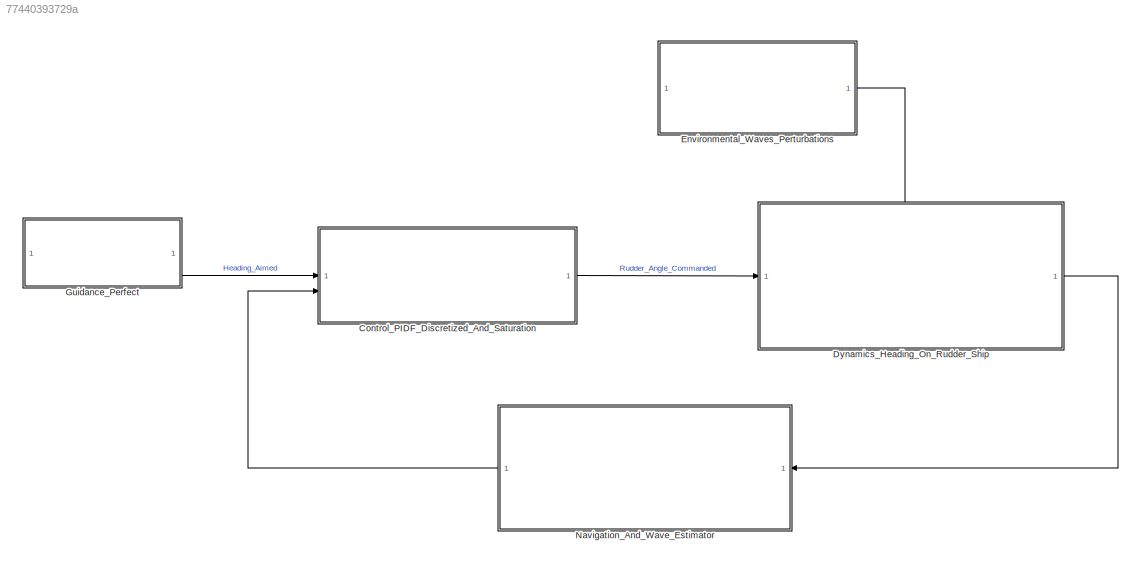
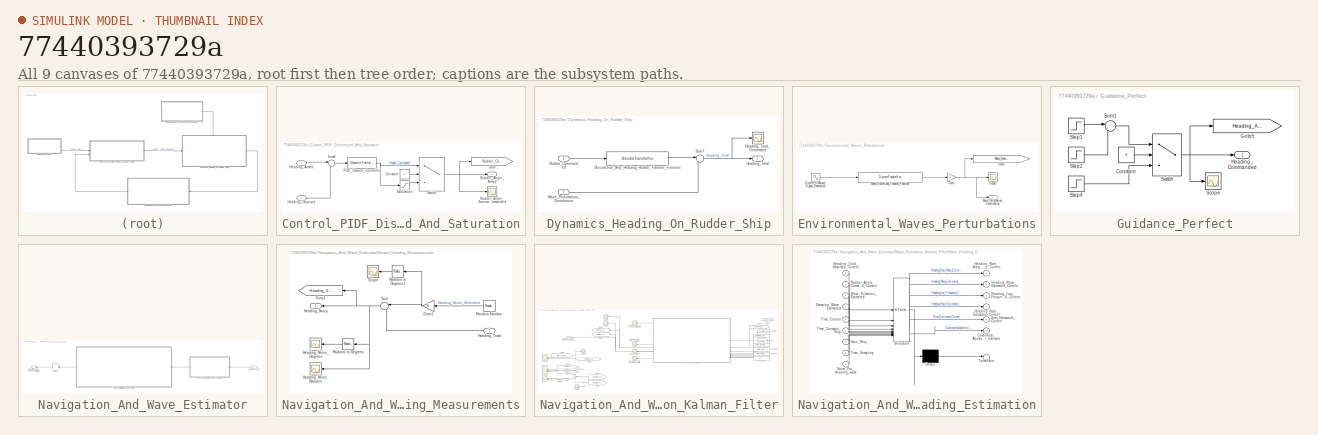
[diagram: thumbnail index - all 9 canvases of the model, root first then tree order]
MODEL slx_77440393729a
KIND model
CONFIG AbsTol = auto
CONFIG EnableMultiTasking = off
CONFIG FixedStep = auto
CONFIG MaxStep = auto
CONFIG MinStep = auto
CONFIG RelTol = 1e-3
CONFIG SampleTimeConstraint = Unconstrained
CONFIG SolverName = VariableStepAuto
CONFIG StartTime = 0.0
CONFIG StopTime = 100
BLOCK [SubSystem] Control_PIDF_Discretized_And_Saturation
BLOCK [Constant] Control_PIDF_Discretized_And_Saturation/Constant
  Value = 0
BLOCK [Goto] Control_PIDF_Discretized_And_Saturation/Goto
  GotoTag = Rudder_Commanded
  TagVisibility = global
BLOCK [Inport] Control_PIDF_Discretized_And_Saturation/Heading_Aimed
BLOCK [Inport] Control_PIDF_Discretized_And_Saturation/Heading_Observed
  Port = 2
BLOCK [DiscreteTransferFcn] Control_PIDF_Discretized_And_Saturation/PIDF_Discrete_Controller
  Denominator = [Controller_PDF_Classical_Discrete.Denominator{1}]
  InputPortMap = u0
  Numerator = [Controller_PDF_Classical_Discrete.Numerator{1}]
BLOCK [Outport] Control_PIDF_Discretized_And_Saturation/Rudder_Angle_Aimed
BLOCK [Scope] Control_PIDF_Discretized_And_Saturation/Rudder_Angle_Saturated_Commanded
  Floating = off
  NumInputPorts = 1
  ScopeSpecificationString = Simulink.scopes.TimeScopeBlockCfg('CurrentConfiguration', extmgr.ConfigurationSet(extmgr.Configuration('Core','General UI',true),extmgr.Configuration('Core','Source UI',true),extmgr.Configuration('Sources','WiredSimulink',true,'DataLoggingVariableName','ScopeData1'),extmgr.Configuration('Visuals','Time Domain',true,'SerializedDisplays',{struct('MinYLimReal','-0.76358','MaxYLimReal','0.76358','YLab...<+1498ch>
BLOCK [Saturate] Control_PIDF_Discretized_And_Saturation/Saturation
  LowerLimit = -35*(pi/180)
  UpperLimit = 35*(pi/180)
BLOCK [Sum] Control_PIDF_Discretized_And_Saturation/Sum6
  Inputs = |+-
BLOCK [Switch] Control_PIDF_Discretized_And_Saturation/Switch
  Criteria = u2 > Threshold
  InputSameDT = off
  SaturateOnIntegerOverflow = off
BLOCK [SubSystem] Dynamics_Heading_On_Rudder_Ship
  PortSchema = {"entries":[{"content":{"sides":[{"content":{"connectorIds":["In1"]},"type":"ConnectorPlacement.EquallySpacedRectSide","uuid":"1262d93f-9737-49c5-b1c8-13d3f825160d"},{"content":{"connectorIds":["Out1"],"side":"RIGHT"},"type":"ConnectorPlacement.EquallySpacedRectSide","uuid":"2783823e-17f0-4da0-9b4a-e84aa912eb5f"},{"content":{"connectorIds":["In2"],"side":"TOP"},"type":"ConnectorPlacement.EquallySp...<+245ch>
BLOCK [DiscreteTransferFcn] Dynamics_Heading_On_Rudder_Ship/Discretized_Ship_Heading_Rudder_Transfer_Function
  Denominator = [Rudder_To_Heading_Discretized.Denominator{1}]
  InputPortMap = u0
  Numerator = [Rudder_To_Heading_Discretized.Numerator{1}]
BLOCK [Outport] Dynamics_Heading_On_Rudder_Ship/Heading_Total
BLOCK [Scope] Dynamics_Heading_On_Rudder_Ship/Heading_Total_Generated
  Floating = off
  NumInputPorts = 1
  ScopeSpecificationString = Simulink.scopes.TimeScopeBlockCfg('CurrentConfiguration', extmgr.ConfigurationSet(extmgr.Configuration('Core','General UI',true),extmgr.Configuration('Core','Source UI',true),extmgr.Configuration('Sources','WiredSimulink',true,'DataLoggingVariableName','ScopeData1'),extmgr.Configuration('Visuals','Time Domain',true,'SerializedDisplays',{struct('MinYLimReal','-2496.16459','MaxYLimReal','22464.7165'...<+1483ch>
BLOCK [Inport] Dynamics_Heading_On_Rudder_Ship/Rudder_Commanded
BLOCK [Sum] Dynamics_Heading_On_Rudder_Ship/Sum7
  Inputs = |++
BLOCK [Inport] Dynamics_Heading_On_Rudder_Ship/Wave_Perturbation_Contribution
  Port = 2
BLOCK [SubSystem] Environmental_Waves_Perturbations
BLOCK [Sin] Environmental_Waves_Perturbations/Discrete_Sinewave_Signal_Generation
  Amplitude = 1*(pi/180)
  Frequency = Pulsation_Wave
  SampleTime = Time_Period_Sampling
BLOCK [Gain] Environmental_Waves_Perturbations/Gain
BLOCK [Goto] Environmental_Waves_Perturbations/Goto2
  GotoTag = Wave_Generated_Signal
  TagVisibility = global
BLOCK [Scope] Environmental_Waves_Perturbations/Scope5
  Floating = off
  NumInputPorts = 1
  ScopeSpecificationString = Simulink.scopes.TimeScopeBlockCfg('CurrentConfiguration', extmgr.ConfigurationSet(extmgr.Configuration('Core','General UI',true),extmgr.Configuration('Core','Source UI',true),extmgr.Configuration('Sources','WiredSimulink',true,'DataLoggingVariableName','ScopeData2'),extmgr.Configuration('Visuals','Time Domain',true,'SerializedDisplays',{struct('MinYLimReal','-0.38135','MaxYLimReal','0.38122','YLab...<+1487ch>
BLOCK [DiscreteTransferFcn] Environmental_Waves_Perturbations/Wave_Discretized_Transfer_Function
  Denominator = [Wave_Transfer_Function_Discrete.Denominator{1}]
  InputPortMap = u0
  Numerator = [Wave_Transfer_Function_Discrete.Numerator{1}]
BLOCK [Outport] Environmental_Waves_Perturbations/Wave_Perturbation_Contribution
BLOCK [SubSystem] Guidance_Perfect
BLOCK [Constant] Guidance_Perfect/Constant
  Value = 0
BLOCK [Goto] Guidance_Perfect/Goto5
  GotoTag = Heading_Aimed
  TagVisibility = global
BLOCK [Outport] Guidance_Perfect/Heading_Commanded
BLOCK [Scope] Guidance_Perfect/Scope
  Floating = off
  NumInputPorts = 1
  ScopeSpecificationString = Simulink.scopes.TimeScopeBlockCfg('CurrentConfiguration', extmgr.ConfigurationSet(extmgr.Configuration('Core','General UI',true),extmgr.Configuration('Core','Source UI',true),extmgr.Configuration('Sources','WiredSimulink',true,'DataLoggingVariableName','ScopeData1'),extmgr.Configuration('Visuals','Time Domain',true,'SerializedDisplays',{struct('MinYLimReal','-0.06545','MaxYLimReal','0.58905','YLab...<+1454ch>
BLOCK [Step] Guidance_Perfect/Step1
  After = 15*(pi/180)
  SampleTime = 0
BLOCK [Step] Guidance_Perfect/Step2
  After = 22*(pi/180)
  SampleTime = 0
  Time = 5
BLOCK [Step] Guidance_Perfect/Step4
  After = 30*(pi/180)
  SampleTime = 0
BLOCK [Sum] Guidance_Perfect/Sum1
  Inputs = |++
BLOCK [Switch] Guidance_Perfect/Switch
  Criteria = u2 > Threshold
  InputSameDT = off
  SaturateOnIntegerOverflow = off
BLOCK [SubSystem] Navigation_And_Wave_Estimator
BLOCK [Delay] Navigation_And_Wave_Estimator/Delay
  DelayLength = 1
  InputPortMap = u0
  InputProcessing = Columns as channels (frame based)
  NameLocation = top
BLOCK [Outport] Navigation_And_Wave_Estimator/Heading_Low_Frequency_Filtered_Estimated
BLOCK [Inport] Navigation_And_Wave_Estimator/Heading_Total
BLOCK [SubSystem] Navigation_And_Wave_Estimator/Sensor_Heading_Measurements
BLOCK [Gain] Navigation_And_Wave_Estimator/Sensor_Heading_Measurements/Gain1
BLOCK [Goto] Navigation_And_Wave_Estimator/Sensor_Heading_Measurements/Goto1
  GotoTag = Heading_Observed
  TagVisibility = global
BLOCK [Scope] Navigation_And_Wave_Estimator/Sensor_Heading_Measurements/Heading_Noise_Degrees
  Floating = off
  NumInputPorts = 1
  ScopeSpecificationString = Simulink.scopes.TimeScopeBlockCfg('CurrentConfiguration', extmgr.ConfigurationSet(extmgr.Configuration('Core','General UI',true),extmgr.Configuration('Core','Source UI',true),extmgr.Configuration('Sources','WiredSimulink',true,'DataLoggingVariableName','ScopeData4'),extmgr.Configuration('Visuals','Time Domain',true,'SerializedDisplays',{struct('MinYLimReal','-4.88624','MaxYLimReal','40.76193','YLa...<+1528ch>
BLOCK [Scope] Navigation_And_Wave_Estimator/Sensor_Heading_Measurements/Heading_Noise_Radians
  Floating = off
  NumInputPorts = 1
  ScopeSpecificationString = Simulink.scopes.TimeScopeBlockCfg('CurrentConfiguration', extmgr.ConfigurationSet(extmgr.Configuration('Core','General UI',true),extmgr.Configuration('Core','Source UI',true),extmgr.Configuration('Sources','WiredSimulink',true,'DataLoggingVariableName','ScopeData3'),extmgr.Configuration('Visuals','Time Domain',true,'SerializedDisplays',{struct('MinYLimReal','-1.2109','MaxYLimReal','1.32229','YLabe...<+1522ch>
BLOCK [Outport] Navigation_And_Wave_Estimator/Sensor_Heading_Measurements/Heading_Noisy
BLOCK [Inport] Navigation_And_Wave_Estimator/Sensor_Heading_Measurements/Heading_Total
BLOCK [Reference] Navigation_And_Wave_Estimator/Sensor_Heading_Measurements/Radians to Degrees  REF=simulink_extras/Transformations/Radians
to Degrees
  SourceBlock = simulink_extras/Transformations/Radians\nto Degrees
  SourceType = RadiansToDegrees
BLOCK [Reference] Navigation_And_Wave_Estimator/Sensor_Heading_Measurements/Radians to Degrees1  REF=simulink_extras/Transformations/Radians
to Degrees
  SourceBlock = simulink_extras/Transformations/Radians\nto Degrees
  SourceType = RadiansToDegrees
BLOCK [RandomNumber] Navigation_And_Wave_Estimator/Sensor_Heading_Measurements/Random Number
  SampleTime = Time_Period_Sampling
  Variance = ((1*(pi/180))/3)^2
BLOCK [Scope] Navigation_And_Wave_Estimator/Sensor_Heading_Measurements/Scope
  Floating = off
  NumInputPorts = 1
  ScopeSpecificationString = Simulink.scopes.TimeScopeBlockCfg('CurrentConfiguration', extmgr.ConfigurationSet(extmgr.Configuration('Core','General UI',true),extmgr.Configuration('Core','Source UI',true),extmgr.Configuration('Sources','WiredSimulink',true,'DataLoggingVariableName','ScopeData1'),extmgr.Configuration('Visuals','Time Domain',true,'SerializedDisplays',{struct('MinYLimReal','-1.23545','MaxYLimReal','1.32502','YLab...<+1467ch>
BLOCK [Sum] Navigation_And_Wave_Estimator/Sensor_Heading_Measurements/Sum
  Inputs = |++
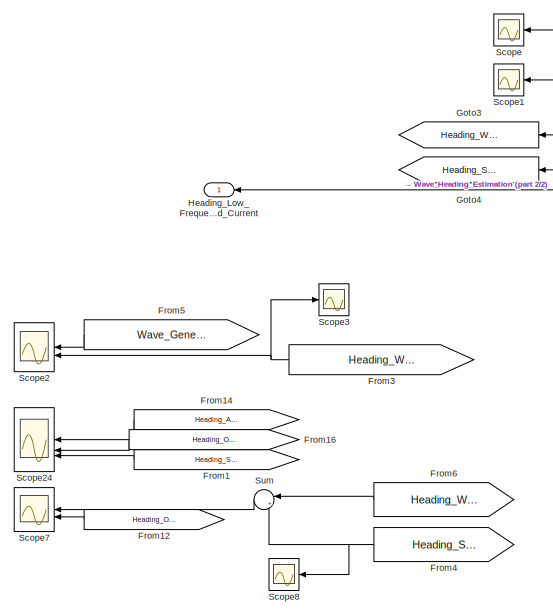
[diagram: Navigation_And_Wave_Estimator/Wave_Estimation_Kalman_Filter - part 1/2, left side, full height]
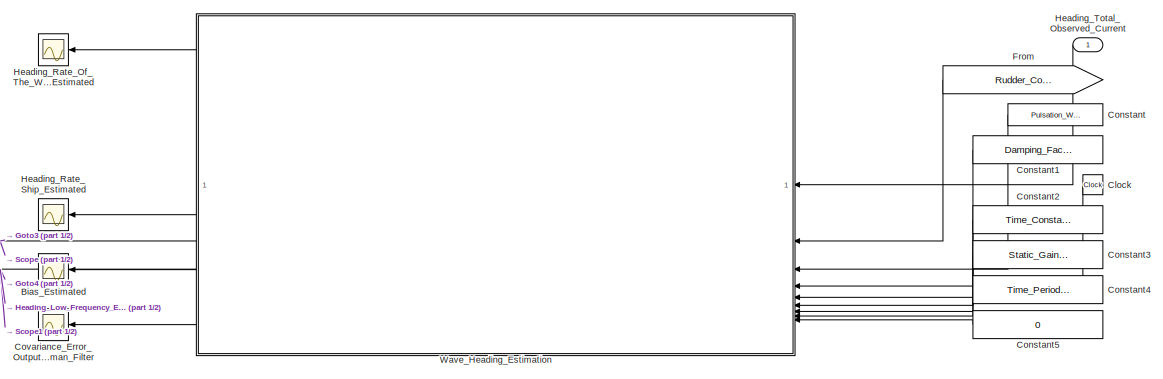
[diagram: Navigation_And_Wave_Estimator/Wave_Estimation_Kalman_Filter - part 2/2, middle right region]
BLOCK [SubSystem] Navigation_And_Wave_Estimator/Wave_Estimation_Kalman_Filter
BLOCK [Scope] Navigation_And_Wave_Estimator/Wave_Estimation_Kalman_Filter/Bias_Estimated
  Floating = off
  NumInputPorts = 1
  ScopeSpecificationString = Simulink.scopes.TimeScopeBlockCfg('CurrentConfiguration', extmgr.ConfigurationSet(extmgr.Configuration('Core','General UI',true),extmgr.Configuration('Core','Source UI',true),extmgr.Configuration('Sources','WiredSimulink',true,'DataLoggingVariableName','ScopeData9'),extmgr.Configuration('Visuals','Time Domain',true),extmgr.Configuration('Tools','Plot Navigation',true),extmgr.Configuration('Tools',...<+40ch>
BLOCK [Clock] Navigation_And_Wave_Estimator/Wave_Estimation_Kalman_Filter/Clock
BLOCK [Constant] Navigation_And_Wave_Estimator/Wave_Estimation_Kalman_Filter/Constant
  SampleTime = Time_Period_Sampling
  Value = Pulsation_Wave
BLOCK [Constant] Navigation_And_Wave_Estimator/Wave_Estimation_Kalman_Filter/Constant1
  SampleTime = Time_Period_Sampling
  Value = Damping_Factor_Waves
BLOCK [Constant] Navigation_And_Wave_Estimator/Wave_Estimation_Kalman_Filter/Constant2
  SampleTime = Time_Period_Sampling
  Value = Time_Constant_Total
BLOCK [Constant] Navigation_And_Wave_Estimator/Wave_Estimation_Kalman_Filter/Constant3
  SampleTime = Time_Period_Sampling
  Value = Static_Gain_Nomoto
BLOCK [Constant] Navigation_And_Wave_Estimator/Wave_Estimation_Kalman_Filter/Constant4
  SampleTime = Time_Period_Sampling
  Value = Time_Period_Sampling
BLOCK [Constant] Navigation_And_Wave_Estimator/Wave_Estimation_Kalman_Filter/Constant5
  Value = 0
BLOCK [Scope] Navigation_And_Wave_Estimator/Wave_Estimation_Kalman_Filter/Covariance_Error_Output_Kalman_Filter
  Floating = off
  NumInputPorts = 1
  ScopeSpecificationString = Simulink.scopes.TimeScopeBlockCfg('CurrentConfiguration', extmgr.ConfigurationSet(extmgr.Configuration('Core','General UI',true),extmgr.Configuration('Core','Source UI',true),extmgr.Configuration('Sources','WiredSimulink',true,'DataLoggingVariableName','ScopeData10'),extmgr.Configuration('Visuals','Time Domain',true),extmgr.Configuration('Tools','Plot Navigation',true),extmgr.Configuration('Tools'...<+41ch>
BLOCK [From] Navigation_And_Wave_Estimator/Wave_Estimation_Kalman_Filter/From
  GotoTag = Rudder_Commanded
  TagVisibility = global
BLOCK [From] Navigation_And_Wave_Estimator/Wave_Estimation_Kalman_Filter/From1
  GotoTag = Heading_Ship_Estimated
  TagVisibility = global
BLOCK [From] Navigation_And_Wave_Estimator/Wave_Estimation_Kalman_Filter/From12
  GotoTag = Heading_Observed
  TagVisibility = global
BLOCK [From] Navigation_And_Wave_Estimator/Wave_Estimation_Kalman_Filter/From14
  GotoTag = Heading_Aimed
  TagVisibility = global
BLOCK [From] Navigation_And_Wave_Estimator/Wave_Estimation_Kalman_Filter/From16
  GotoTag = Heading_Observed
  TagVisibility = global
BLOCK [From] Navigation_And_Wave_Estimator/Wave_Estimation_Kalman_Filter/From3
  GotoTag = Heading_Wave_Estimated
  TagVisibility = global
BLOCK [From] Navigation_And_Wave_Estimator/Wave_Estimation_Kalman_Filter/From4
  GotoTag = Heading_Ship_Estimated
  TagVisibility = global
BLOCK [From] Navigation_And_Wave_Estimator/Wave_Estimation_Kalman_Filter/From5
  GotoTag = Wave_Generated_Signal
  TagVisibility = global
BLOCK [From] Navigation_And_Wave_Estimator/Wave_Estimation_Kalman_Filter/From6
  GotoTag = Heading_Wave_Estimated
  TagVisibility = global
BLOCK [Goto] Navigation_And_Wave_Estimator/Wave_Estimation_Kalman_Filter/Goto3
  GotoTag = Heading_Wave_Estimated
  TagVisibility = global
BLOCK [Goto] Navigation_And_Wave_Estimator/Wave_Estimation_Kalman_Filter/Goto4
  GotoTag = Heading_Ship_Estimated
  NameLocation = right
  TagVisibility = global
BLOCK [Outport] Navigation_And_Wave_Estimator/Wave_Estimation_Kalman_Filter/Heading_Low_Frequency_Estimated_Current
BLOCK [Scope] Navigation_And_Wave_Estimator/Wave_Estimation_Kalman_Filter/Heading_Rate_Of_The_Waves_Estimated
  Floating = off
  NumInputPorts = 1
  ScopeSpecificationString = Simulink.scopes.TimeScopeBlockCfg('CurrentConfiguration', extmgr.ConfigurationSet(extmgr.Configuration('Core','General UI',true),extmgr.Configuration('Core','Source UI',true),extmgr.Configuration('Sources','WiredSimulink',true,'DataLoggingVariableName','ScopeData5'),extmgr.Configuration('Visuals','Time Domain',true),extmgr.Configuration('Tools','Plot Navigation',true),extmgr.Configuration('Tools',...<+40ch>
BLOCK [Scope] Navigation_And_Wave_Estimator/Wave_Estimation_Kalman_Filter/Heading_Rate_Ship_Estimated
  Floating = off
  NumInputPorts = 1
  ScopeSpecificationString = Simulink.scopes.TimeScopeBlockCfg('CurrentConfiguration', extmgr.ConfigurationSet(extmgr.Configuration('Core','General UI',true),extmgr.Configuration('Core','Source UI',true),extmgr.Configuration('Sources','WiredSimulink',true,'DataLoggingVariableName','ScopeData8'),extmgr.Configuration('Visuals','Time Domain',true,'SerializedDisplays',{struct('MinYLimReal','-0.03623','MaxYLimReal','0.05856','YLab...<+1502ch>
BLOCK [Inport] Navigation_And_Wave_Estimator/Wave_Estimation_Kalman_Filter/Heading_Total_Observed_Current
BLOCK [Scope] Navigation_And_Wave_Estimator/Wave_Estimation_Kalman_Filter/Scope
  Floating = off
  NumInputPorts = 1
  ScopeSpecificationString = Simulink.scopes.TimeScopeBlockCfg('CurrentConfiguration', extmgr.ConfigurationSet(extmgr.Configuration('Core','General UI',true),extmgr.Configuration('Core','Source UI',true),extmgr.Configuration('Sources','WiredSimulink',true,'DataLoggingVariableName','ScopeData6'),extmgr.Configuration('Visuals','Time Domain',true,'SerializedDisplays',{struct('MinYLimReal','-0.31549','MaxYLimReal','0.31628','YLab...<+1502ch>
BLOCK [Scope] Navigation_And_Wave_Estimator/Wave_Estimation_Kalman_Filter/Scope1
  Floating = off
  NumInputPorts = 1
  ScopeSpecificationString = Simulink.scopes.TimeScopeBlockCfg('CurrentConfiguration', extmgr.ConfigurationSet(extmgr.Configuration('Core','General UI',true),extmgr.Configuration('Core','Source UI',true),extmgr.Configuration('Sources','WiredSimulink',true,'DataLoggingVariableName','ScopeData7'),extmgr.Configuration('Visuals','Time Domain',true,'SerializedDisplays',{struct('MinYLimReal','-0.08218','MaxYLimReal','0.73966','YLab...<+1536ch>
BLOCK [Scope] Navigation_And_Wave_Estimator/Wave_Estimation_Kalman_Filter/Scope2
  Floating = off
  NumInputPorts = 2
  ScopeSpecificationString = Simulink.scopes.TimeScopeBlockCfg('CurrentConfiguration', extmgr.ConfigurationSet(extmgr.Configuration('Core','General UI',true),extmgr.Configuration('Core','Source UI',true),extmgr.Configuration('Sources','WiredSimulink',true,'DataLoggingVariableName','ScopeData11'),extmgr.Configuration('Visuals','Time Domain',true,'SerializedDisplays',{struct('MinYLimReal','-0.07627','MaxYLimReal','0.07624','YLa...<+1565ch>
BLOCK [Scope] Navigation_And_Wave_Estimator/Wave_Estimation_Kalman_Filter/Scope24
  Floating = off
  NumInputPorts = 3
  ScopeSpecificationString = Simulink.scopes.TimeScopeBlockCfg('CurrentConfiguration', extmgr.ConfigurationSet(extmgr.Configuration('Core','General UI',true),extmgr.Configuration('Core','Source UI',true),extmgr.Configuration('Sources','WiredSimulink',true,'DataLoggingVariableName','ScopeData13'),extmgr.Configuration('Visuals','Time Domain',true,'SerializedDisplays',{struct('MinYLimReal','-0.08528','MaxYLimReal','0.71143','YLa...<+1582ch>
BLOCK [Scope] Navigation_And_Wave_Estimator/Wave_Estimation_Kalman_Filter/Scope3
  Floating = off
  NumInputPorts = 1
  ScopeSpecificationString = Simulink.scopes.TimeScopeBlockCfg('CurrentConfiguration', extmgr.ConfigurationSet(extmgr.Configuration('Core','General UI',true),extmgr.Configuration('Core','Source UI',true),extmgr.Configuration('Sources','WiredSimulink',true,'DataLoggingVariableName','ScopeData12'),extmgr.Configuration('Visuals','Time Domain',true,'SerializedDisplays',{struct('MinYLimReal','-0.30515','MaxYLimReal','0.34115','YLa...<+1464ch>
BLOCK [Scope] Navigation_And_Wave_Estimator/Wave_Estimation_Kalman_Filter/Scope7
  Floating = off
  NumInputPorts = 2
  ScopeSpecificationString = Simulink.scopes.TimeScopeBlockCfg('CurrentConfiguration', extmgr.ConfigurationSet(extmgr.Configuration('Core','General UI',true),extmgr.Configuration('Core','Source UI',true),extmgr.Configuration('Sources','WiredSimulink',true,'DataLoggingVariableName','ScopeData14'),extmgr.Configuration('Visuals','Time Domain',true,'SerializedDisplays',{struct('MinYLimReal','-0.10386','MaxYLimReal','0.91742','YLa...<+1502ch>
BLOCK [Scope] Navigation_And_Wave_Estimator/Wave_Estimation_Kalman_Filter/Scope8
  Floating = off
  NumInputPorts = 1
  ScopeSpecificationString = Simulink.scopes.TimeScopeBlockCfg('CurrentConfiguration', extmgr.ConfigurationSet(extmgr.Configuration('Core','General UI',true),extmgr.Configuration('Core','Source UI',true),extmgr.Configuration('Sources','WiredSimulink',true,'DataLoggingVariableName','ScopeData15'),extmgr.Configuration('Visuals','Time Domain',true,'SerializedDisplays',{struct('MinYLimReal','-0.28811','MaxYLimReal','0.60064','YLa...<+1490ch>
BLOCK [Sum] Navigation_And_Wave_Estimator/Wave_Estimation_Kalman_Filter/Sum
  Inputs = |++
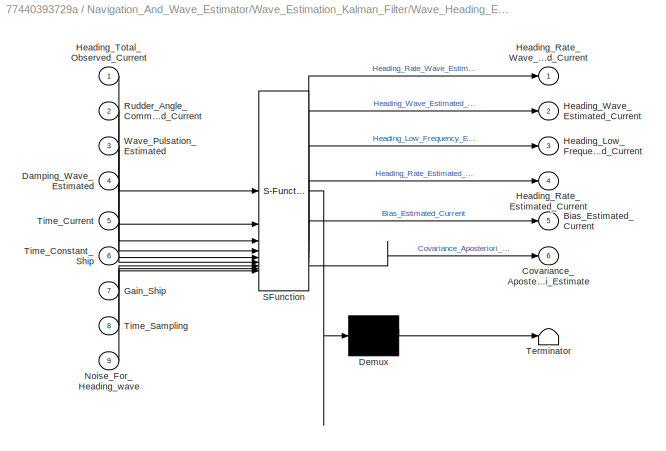
BLOCK [SubSystem] Navigation_And_Wave_Estimator/Wave_Estimation_Kalman_Filter/Wave_Heading_Estimation
  ErrorFcn = Stateflow.Translate.translate
  PermitHierarchicalResolution = ExplicitOnly
  SFBlockType = MATLAB Function
  SystemSampleTime = Time_Period_Sampling
  TreatAsAtomicUnit = on
BLOCK [Demux] Navigation_And_Wave_Estimator/Wave_Estimation_Kalman_Filter/Wave_Heading_Estimation/ Demux 
  Outputs = 1
BLOCK [S-Function] Navigation_And_Wave_Estimator/Wave_Estimation_Kalman_Filter/Wave_Heading_Estimation/ SFunction 
  EnableBusSupport = on
  FunctionName = sf_sfun
  PortCounts = [9 7]
  SFcnIsStateOwnerBlock = off
  SFunctionDeploymentMode = off
  Tag = Stateflow S-Function 2
BLOCK [Terminator] Navigation_And_Wave_Estimator/Wave_Estimation_Kalman_Filter/Wave_Heading_Estimation/ Terminator 
BLOCK [Outport] Navigation_And_Wave_Estimator/Wave_Estimation_Kalman_Filter/Wave_Heading_Estimation/Bias_Estimated_Current
  Port = 5
BLOCK [Outport] Navigation_And_Wave_Estimator/Wave_Estimation_Kalman_Filter/Wave_Heading_Estimation/Covariance_Aposteriori_Estimate
  Port = 6
BLOCK [Inport] Navigation_And_Wave_Estimator/Wave_Estimation_Kalman_Filter/Wave_Heading_Estimation/Damping_Wave_Estimated
  Port = 4
BLOCK [Inport] Navigation_And_Wave_Estimator/Wave_Estimation_Kalman_Filter/Wave_Heading_Estimation/Gain_Ship
  Port = 7
BLOCK [Outport] Navigation_And_Wave_Estimator/Wave_Estimation_Kalman_Filter/Wave_Heading_Estimation/Heading_Low_Frequency_Estimated_Current
  Port = 3
BLOCK [Outport] Navigation_And_Wave_Estimator/Wave_Estimation_Kalman_Filter/Wave_Heading_Estimation/Heading_Rate_Estimated_Current
  Port = 4
BLOCK [Outport] Navigation_And_Wave_Estimator/Wave_Estimation_Kalman_Filter/Wave_Heading_Estimation/Heading_Rate_Wave_Estimated_Current
BLOCK [Inport] Navigation_And_Wave_Estimator/Wave_Estimation_Kalman_Filter/Wave_Heading_Estimation/Heading_Total_Observed_Current
BLOCK [Outport] Navigation_And_Wave_Estimator/Wave_Estimation_Kalman_Filter/Wave_Heading_Estimation/Heading_Wave_Estimated_Current
  Port = 2
BLOCK [Inport] Navigation_And_Wave_Estimator/Wave_Estimation_Kalman_Filter/Wave_Heading_Estimation/Noise_For_Heading_wave
  Port = 9
BLOCK [Inport] Navigation_And_Wave_Estimator/Wave_Estimation_Kalman_Filter/Wave_Heading_Estimation/Rudder_Angle_Commanded_Current
  Port = 2
BLOCK [Inport] Navigation_And_Wave_Estimator/Wave_Estimation_Kalman_Filter/Wave_Heading_Estimation/Time_Constant_Ship
  Port = 6
BLOCK [Inport] Navigation_And_Wave_Estimator/Wave_Estimation_Kalman_Filter/Wave_Heading_Estimation/Time_Current
  Port = 5
BLOCK [Inport] Navigation_And_Wave_Estimator/Wave_Estimation_Kalman_Filter/Wave_Heading_Estimation/Time_Sampling
  Port = 8
BLOCK [Inport] Navigation_And_Wave_Estimator/Wave_Estimation_Kalman_Filter/Wave_Heading_Estimation/Wave_Pulsation_Estimated
  Port = 3
LINE Control_PIDF_Discretized_And_Saturation/Constant:1 -> Control_PIDF_Discretized_And_Saturation/Switch:2
LINE Control_PIDF_Discretized_And_Saturation/Heading_Aimed:1 -> Control_PIDF_Discretized_And_Saturation/Sum6:1
LINE Control_PIDF_Discretized_And_Saturation/Heading_Observed:1 -> Control_PIDF_Discretized_And_Saturation/Sum6:2
NET Control_PIDF_Discretized_And_Saturation/PIDF_Discrete_Controller:1 -> Control_PIDF_Discretized_And_Saturation/Saturation:1, Control_PIDF_Discretized_And_Saturation/Switch:1
LINE Control_PIDF_Discretized_And_Saturation/Saturation:1 -> Control_PIDF_Discretized_And_Saturation/Switch:3
LINE Control_PIDF_Discretized_And_Saturation/Sum6:1 -> Control_PIDF_Discretized_And_Saturation/PIDF_Discrete_Controller:1
NET Control_PIDF_Discretized_And_Saturation/Switch:1 -> Control_PIDF_Discretized_And_Saturation/Goto:1, Control_PIDF_Discretized_And_Saturation/Rudder_Angle_Aimed:1, Control_PIDF_Discretized_And_Saturation/Rudder_Angle_Saturated_Commanded:1
LINE Control_PIDF_Discretized_And_Saturation:1 -> Dynamics_Heading_On_Rudder_Ship:1
LINE Dynamics_Heading_On_Rudder_Ship/Discretized_Ship_Heading_Rudder_Transfer_Function:1 -> Dynamics_Heading_On_Rudder_Ship/Sum7:1
LINE Dynamics_Heading_On_Rudder_Ship/Rudder_Commanded:1 -> Dynamics_Heading_On_Rudder_Ship/Discretized_Ship_Heading_Rudder_Transfer_Function:1
NET Dynamics_Heading_On_Rudder_Ship/Sum7:1 -> Dynamics_Heading_On_Rudder_Ship/Heading_Total:1, Dynamics_Heading_On_Rudder_Ship/Heading_Total_Generated:1
LINE Dynamics_Heading_On_Rudder_Ship/Wave_Perturbation_Contribution:1 -> Dynamics_Heading_On_Rudder_Ship/Sum7:2
LINE Dynamics_Heading_On_Rudder_Ship:1 -> Navigation_And_Wave_Estimator:1
LINE Environmental_Waves_Perturbations/Discrete_Sinewave_Signal_Generation:1 -> Environmental_Waves_Perturbations/Wave_Discretized_Transfer_Function:1
NET Environmental_Waves_Perturbations/Gain:1 -> Environmental_Waves_Perturbations/Goto2:1, Environmental_Waves_Perturbations/Scope5:1, Environmental_Waves_Perturbations/Wave_Perturbation_Contribution:1
LINE Environmental_Waves_Perturbations/Wave_Discretized_Transfer_Function:1 -> Environmental_Waves_Perturbations/Gain:1
LINE Environmental_Waves_Perturbations:1 -> Dynamics_Heading_On_Rudder_Ship:2
LINE Guidance_Perfect/Constant:1 -> Guidance_Perfect/Switch:2
LINE Guidance_Perfect/Step1:1 -> Guidance_Perfect/Sum1:1
LINE Guidance_Perfect/Step2:1 -> Guidance_Perfect/Sum1:2
LINE Guidance_Perfect/Step4:1 -> Guidance_Perfect/Switch:3
LINE Guidance_Perfect/Sum1:1 -> Guidance_Perfect/Switch:1
NET Guidance_Perfect/Switch:1 -> Guidance_Perfect/Goto5:1, Guidance_Perfect/Heading_Commanded:1, Guidance_Perfect/Scope:1
LINE Guidance_Perfect:1 -> Control_PIDF_Discretized_And_Saturation:1
LINE Navigation_And_Wave_Estimator/Delay:1 -> Navigation_And_Wave_Estimator/Heading_Low_Frequency_Filtered_Estimated:1
LINE Navigation_And_Wave_Estimator/Heading_Total:1 -> Navigation_And_Wave_Estimator/Sensor_Heading_Measurements:1
NET Navigation_And_Wave_Estimator/Sensor_Heading_Measurements/Gain1:1 -> Navigation_And_Wave_Estimator/Sensor_Heading_Measurements/Radians to Degrees1:1, Navigation_And_Wave_Estimator/Sensor_Heading_Measurements/Sum:1
LINE Navigation_And_Wave_Estimator/Sensor_Heading_Measurements/Heading_Total:1 -> Navigation_And_Wave_Estimator/Sensor_Heading_Measurements/Sum:2
LINE Navigation_And_Wave_Estimator/Sensor_Heading_Measurements/Radians to Degrees1:1 -> Navigation_And_Wave_Estimator/Sensor_Heading_Measurements/Scope:1
LINE Navigation_And_Wave_Estimator/Sensor_Heading_Measurements/Radians to Degrees:1 -> Navigation_And_Wave_Estimator/Sensor_Heading_Measurements/Heading_Noise_Degrees:1
LINE Navigation_And_Wave_Estimator/Sensor_Heading_Measurements/Random Number:1 -> Navigation_And_Wave_Estimator/Sensor_Heading_Measurements/Gain1:1
NET Navigation_And_Wave_Estimator/Sensor_Heading_Measurements/Sum:1 -> Navigation_And_Wave_Estimator/Sensor_Heading_Measurements/Goto1:1, Navigation_And_Wave_Estimator/Sensor_Heading_Measurements/Heading_Noise_Radians:1, Navigation_And_Wave_Estimator/Sensor_Heading_Measurements/Heading_Noisy:1, Navigation_And_Wave_Estimator/Sensor_Heading_Measurements/Radians to Degrees:1
LINE Navigation_And_Wave_Estimator/Sensor_Heading_Measurements:1 -> Navigation_And_Wave_Estimator/Wave_Estimation_Kalman_Filter:1
LINE Navigation_And_Wave_Estimator/Wave_Estimation_Kalman_Filter/Clock:1 -> Navigation_And_Wave_Estimator/Wave_Estimation_Kalman_Filter/Wave_Heading_Estimation:5
LINE Navigation_And_Wave_Estimator/Wave_Estimation_Kalman_Filter/Constant1:1 -> Navigation_And_Wave_Estimator/Wave_Estimation_Kalman_Filter/Wave_Heading_Estimation:4
LINE Navigation_And_Wave_Estimator/Wave_Estimation_Kalman_Filter/Constant2:1 -> Navigation_And_Wave_Estimator/Wave_Estimation_Kalman_Filter/Wave_Heading_Estimation:6
LINE Navigation_And_Wave_Estimator/Wave_Estimation_Kalman_Filter/Constant3:1 -> Navigation_And_Wave_Estimator/Wave_Estimation_Kalman_Filter/Wave_Heading_Estimation:7
LINE Navigation_And_Wave_Estimator/Wave_Estimation_Kalman_Filter/Constant4:1 -> Navigation_And_Wave_Estimator/Wave_Estimation_Kalman_Filter/Wave_Heading_Estimation:8
LINE Navigation_And_Wave_Estimator/Wave_Estimation_Kalman_Filter/Constant5:1 -> Navigation_And_Wave_Estimator/Wave_Estimation_Kalman_Filter/Wave_Heading_Estimation:9
LINE Navigation_And_Wave_Estimator/Wave_Estimation_Kalman_Filter/Constant:1 -> Navigation_And_Wave_Estimator/Wave_Estimation_Kalman_Filter/Wave_Heading_Estimation:3
LINE Navigation_And_Wave_Estimator/Wave_Estimation_Kalman_Filter/From12:1 -> Navigation_And_Wave_Estimator/Wave_Estimation_Kalman_Filter/Scope7:2
LINE Navigation_And_Wave_Estimator/Wave_Estimation_Kalman_Filter/From14:1 -> Navigation_And_Wave_Estimator/Wave_Estimation_Kalman_Filter/Scope24:1
LINE Navigation_And_Wave_Estimator/Wave_Estimation_Kalman_Filter/From16:1 -> Navigation_And_Wave_Estimator/Wave_Estimation_Kalman_Filter/Scope24:2
LINE Navigation_And_Wave_Estimator/Wave_Estimation_Kalman_Filter/From1:1 -> Navigation_And_Wave_Estimator/Wave_Estimation_Kalman_Filter/Scope24:3
NET Navigation_And_Wave_Estimator/Wave_Estimation_Kalman_Filter/From3:1 -> Navigation_And_Wave_Estimator/Wave_Estimation_Kalman_Filter/Scope2:2, Navigation_And_Wave_Estimator/Wave_Estimation_Kalman_Filter/Scope3:1
NET Navigation_And_Wave_Estimator/Wave_Estimation_Kalman_Filter/From4:1 -> Navigation_And_Wave_Estimator/Wave_Estimation_Kalman_Filter/Scope8:1, Navigation_And_Wave_Estimator/Wave_Estimation_Kalman_Filter/Sum:2
LINE Navigation_And_Wave_Estimator/Wave_Estimation_Kalman_Filter/From5:1 -> Navigation_And_Wave_Estimator/Wave_Estimation_Kalman_Filter/Scope2:1
LINE Navigation_And_Wave_Estimator/Wave_Estimation_Kalman_Filter/From6:1 -> Navigation_And_Wave_Estimator/Wave_Estimation_Kalman_Filter/Sum:1
LINE Navigation_And_Wave_Estimator/Wave_Estimation_Kalman_Filter/From:1 -> Navigation_And_Wave_Estimator/Wave_Estimation_Kalman_Filter/Wave_Heading_Estimation:2
LINE Navigation_And_Wave_Estimator/Wave_Estimation_Kalman_Filter/Heading_Total_Observed_Current:1 -> Navigation_And_Wave_Estimator/Wave_Estimation_Kalman_Filter/Wave_Heading_Estimation:1
LINE Navigation_And_Wave_Estimator/Wave_Estimation_Kalman_Filter/Sum:1 -> Navigation_And_Wave_Estimator/Wave_Estimation_Kalman_Filter/Scope7:1
LINE Navigation_And_Wave_Estimator/Wave_Estimation_Kalman_Filter/Wave_Heading_Estimation:1 -> Navigation_And_Wave_Estimator/Wave_Estimation_Kalman_Filter/Heading_Rate_Of_The_Waves_Estimated:1
NET Navigation_And_Wave_Estimator/Wave_Estimation_Kalman_Filter/Wave_Heading_Estimation:2 -> Navigation_And_Wave_Estimator/Wave_Estimation_Kalman_Filter/Goto3:1, Navigation_And_Wave_Estimator/Wave_Estimation_Kalman_Filter/Scope:1
NET Navigation_And_Wave_Estimator/Wave_Estimation_Kalman_Filter/Wave_Heading_Estimation:3 -> Navigation_And_Wave_Estimator/Wave_Estimation_Kalman_Filter/Goto4:1, Navigation_And_Wave_Estimator/Wave_Estimation_Kalman_Filter/Heading_Low_Frequency_Estimated_Current:1, Navigation_And_Wave_Estimator/Wave_Estimation_Kalman_Filter/Scope1:1
LINE Navigation_And_Wave_Estimator/Wave_Estimation_Kalman_Filter/Wave_Heading_Estimation:4 -> Navigation_And_Wave_Estimator/Wave_Estimation_Kalman_Filter/Heading_Rate_Ship_Estimated:1
LINE Navigation_And_Wave_Estimator/Wave_Estimation_Kalman_Filter/Wave_Heading_Estimation:5 -> Navigation_And_Wave_Estimator/Wave_Estimation_Kalman_Filter/Bias_Estimated:1
LINE Navigation_And_Wave_Estimator/Wave_Estimation_Kalman_Filter/Wave_Heading_Estimation:6 -> Navigation_And_Wave_Estimator/Wave_Estimation_Kalman_Filter/Covariance_Error_Output_Kalman_Filter:1
LINE Navigation_And_Wave_Estimator/Wave_Estimation_Kalman_Filter:1 -> Navigation_And_Wave_Estimator/Delay:1
LINE Navigation_And_Wave_Estimator:1 -> Control_PIDF_Discretized_And_Saturation:2
note: NET lines group one-source signal fan-out (src -> all destinations, sorted); 1:1 wires keep LINE
CHART Navigation_And_Wave_Estimator/Wave_Estimation_Kalman_Filter/Wave_Heading_Estimation states=1 transitions=1
  STATE_LABEL 'eML_blk_kernel()'
  STATE_LABEL 'SCRIPT:\nfunction [Heading_Rate_Wave_Estimated_Current,...\n          Heading_Wave_Estimated_Current,...\n          Heading_Low_Frequency_Estimated_Current,...\n          Heading_Rate_Estimated_Current,...\n          Bias_Estimated_Current,...\n          Covariance_Aposteriori_Estimate]= Kalman_Filter_Wave_Estimation(Heading_Total_Observed_Current,...\n                                                    ...<+3608ch>'
CHART  states=0 transitions=0
